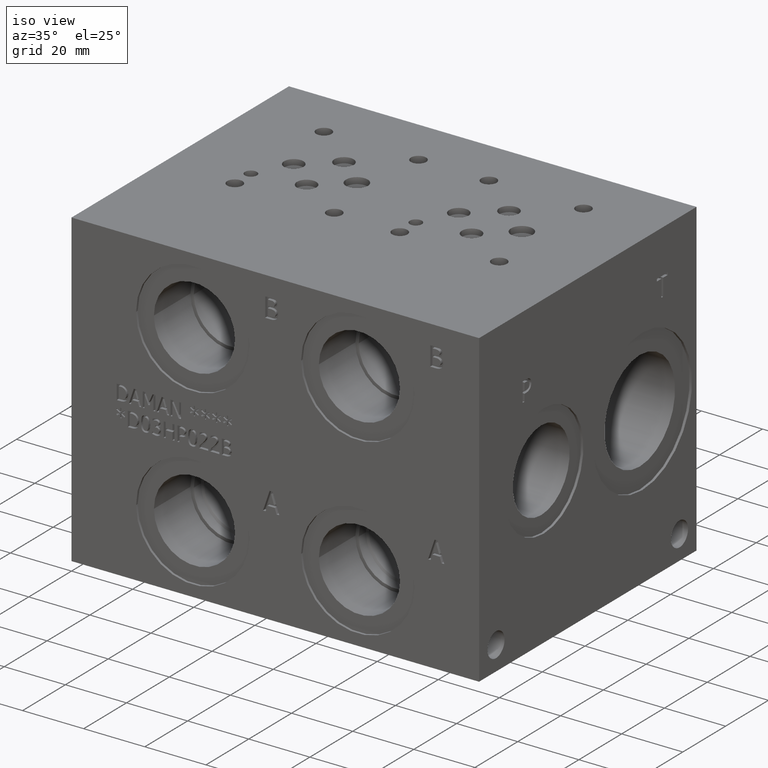
[diagram: clean part render]
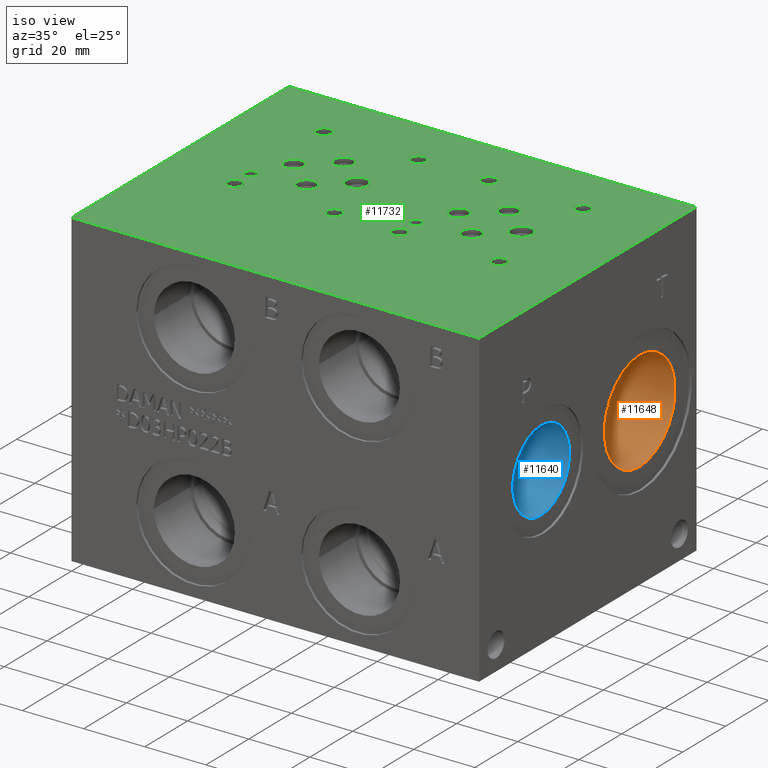
[diagram: same view with three faces highlighted in distinct colors, each labeled with its STEP entity id]
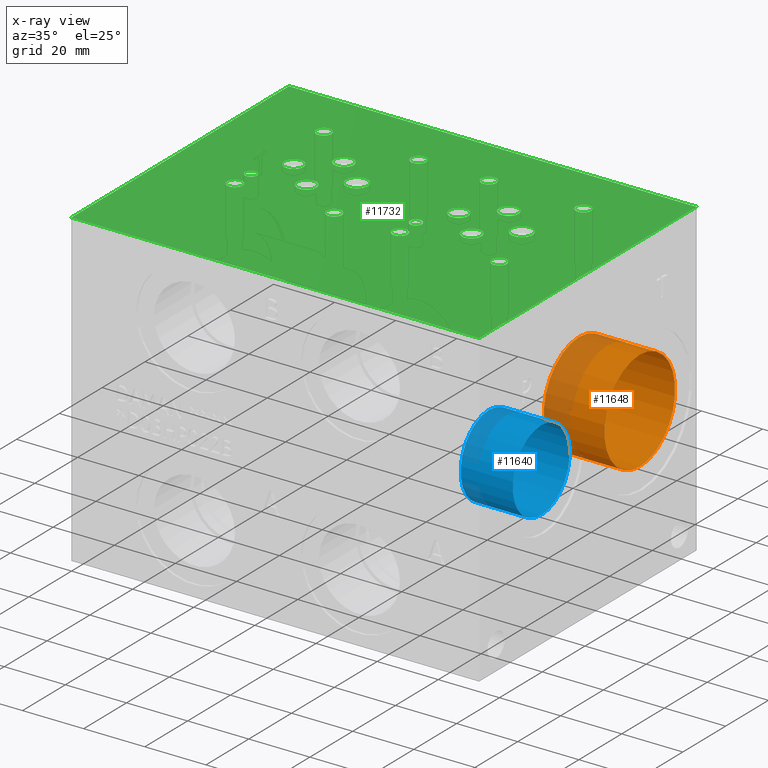
[diagram: x-ray of the same camera — body ghosted, the three highlighted faces saturated]
A machine part, iso view with three faces highlighted in distinct colors.
The next image is the same camera in x-ray (body ghosted, the three faces saturated) — at least one of them is partly hidden behind the body in this view.
Their STEP definitions:

[orange] entity #11648 — the highlighted cylindrical surface (bore or boss wall) has radius 16.4973 mm, axis along (-1, 0, 0).
#78=CYLINDRICAL_SURFACE('',#12227,16.4973);
#375=CIRCLE('',#12225,16.4973);
#376=CIRCLE('',#12226,16.4973);
#377=CIRCLE('',#12228,16.4973);
#378=CIRCLE('',#12229,16.4973);
#1423=FACE_OUTER_BOUND('',#2092,.T.);
#2092=EDGE_LOOP('',(#9877,#9878,#9879,#9880,#9881,#9882));
#3220=LINE('',#19738,#4296);
#4296=VECTOR('',#14420,16.4973);
#5327=VERTEX_POINT('',#19732);
#5328=VERTEX_POINT('',#19733);
#5329=VERTEX_POINT('',#19737);
#5330=VERTEX_POINT('',#19739);
#6898=EDGE_CURVE('',#5327,#5328,#375,.T.);
#6899=EDGE_CURVE('',#5328,#5327,#376,.T.);
#6900=EDGE_CURVE('',#5328,#5329,#3220,.T.);
#6901=EDGE_CURVE('',#5329,#5330,#377,.T.);
#6902=EDGE_CURVE('',#5330,#5329,#378,.T.);
#9877=ORIENTED_EDGE('',*,*,#6898,.F.);
#9878=ORIENTED_EDGE('',*,*,#6899,.F.);
#9879=ORIENTED_EDGE('',*,*,#6900,.T.);
#9880=ORIENTED_EDGE('',*,*,#6901,.T.);
#9881=ORIENTED_EDGE('',*,*,#6902,.T.);
#9882=ORIENTED_EDGE('',*,*,#6900,.F.);
#11648=ADVANCED_FACE('',(#1423),#78,.F.);
#12225=AXIS2_PLACEMENT_3D('',#19734,#14414,#14415);
#12226=AXIS2_PLACEMENT_3D('',#19735,#14416,#14417);
#12227=AXIS2_PLACEMENT_3D('',#19736,#14418,#14419);
#12228=AXIS2_PLACEMENT_3D('',#19740,#14421,#14422);
#12229=AXIS2_PLACEMENT_3D('',#19741,#14423,#14424);
#14414=DIRECTION('center_axis',(-1.,0.,0.));
#14415=DIRECTION('ref_axis',(0.,0.,1.));
#14416=DIRECTION('center_axis',(-1.,0.,0.));
#14417=DIRECTION('ref_axis',(0.,0.,1.));
#14418=DIRECTION('center_axis',(-1.,0.,0.));
#14419=DIRECTION('ref_axis',(0.,0.,-1.));
#14420=DIRECTION('',(-1.,0.,0.));
#14421=DIRECTION('center_axis',(-1.,0.,0.));
#14422=DIRECTION('ref_axis',(0.,0.,1.));
#14423=DIRECTION('center_axis',(-1.,0.,0.));
#14424=DIRECTION('ref_axis',(0.,0.,1.));
#19732=CARTESIAN_POINT('',(132.5626,76.2,34.3027));
#19733=CARTESIAN_POINT('',(132.5626,76.2,67.2973));
#19734=CARTESIAN_POINT('Origin',(132.5626,76.2,50.8));
#19735=CARTESIAN_POINT('Origin',(132.5626,76.2,50.8));
#19736=CARTESIAN_POINT('Origin',(122.6185,76.2,50.8));
#19737=CARTESIAN_POINT('',(112.6744,76.2,67.2973));
#19738=CARTESIAN_POINT('',(122.6185,76.2,67.2973));
#19739=CARTESIAN_POINT('',(112.6744,76.2,34.3027));
#19740=CARTESIAN_POINT('Origin',(112.6744,76.2,50.8));
#19741=CARTESIAN_POINT('Origin',(112.6744,76.2,50.8));

[blue] entity #11640 — the highlighted cylindrical surface (bore or boss wall) has radius 13.2715 mm, axis along (-1, 0, 0).
#74=CYLINDRICAL_SURFACE('',#12205,13.2715);
#361=CIRCLE('',#12203,13.2715);
#362=CIRCLE('',#12204,13.2715);
#363=CIRCLE('',#12206,13.2715);
#364=CIRCLE('',#12207,13.2715);
#1415=FACE_OUTER_BOUND('',#2082,.T.);
#2082=EDGE_LOOP('',(#9835,#9836,#9837,#9838,#9839,#9840));
#3214=LINE('',#19695,#4290);
#4290=VECTOR('',#14370,13.2715);
#5312=VERTEX_POINT('',#19689);
#5313=VERTEX_POINT('',#19690);
#5314=VERTEX_POINT('',#19694);
#5315=VERTEX_POINT('',#19696);
#6878=EDGE_CURVE('',#5312,#5313,#361,.T.);
#6879=EDGE_CURVE('',#5313,#5312,#362,.T.);
#6880=EDGE_CURVE('',#5313,#5314,#3214,.T.);
#6881=EDGE_CURVE('',#5314,#5315,#363,.T.);
#6882=EDGE_CURVE('',#5315,#5314,#364,.T.);
#9835=ORIENTED_EDGE('',*,*,#6878,.F.);
#9836=ORIENTED_EDGE('',*,*,#6879,.F.);
#9837=ORIENTED_EDGE('',*,*,#6880,.T.);
#9838=ORIENTED_EDGE('',*,*,#6881,.T.);
#9839=ORIENTED_EDGE('',*,*,#6882,.T.);
#9840=ORIENTED_EDGE('',*,*,#6880,.F.);
#11640=ADVANCED_FACE('',(#1415),#74,.F.);
#12203=AXIS2_PLACEMENT_3D('',#19691,#14364,#14365);
#12204=AXIS2_PLACEMENT_3D('',#19692,#14366,#14367);
#12205=AXIS2_PLACEMENT_3D('',#19693,#14368,#14369);
#12206=AXIS2_PLACEMENT_3D('',#19697,#14371,#14372);
#12207=AXIS2_PLACEMENT_3D('',#19698,#14373,#14374);
#14364=DIRECTION('center_axis',(-1.,0.,0.));
#14365=DIRECTION('ref_axis',(0.,0.,1.));
#14366=DIRECTION('center_axis',(-1.,0.,0.));
#14367=DIRECTION('ref_axis',(0.,0.,1.));
#14368=DIRECTION('center_axis',(-1.,0.,0.));
#14369=DIRECTION('ref_axis',(0.,0.,-1.));
#14370=DIRECTION('',(-1.,0.,0.));
#14371=DIRECTION('center_axis',(-1.,0.,0.));
#14372=DIRECTION('ref_axis',(0.,0.,1.));
#14373=DIRECTION('center_axis',(-1.,0.,0.));
#14374=DIRECTION('ref_axis',(0.,0.,1.));
#19689=CARTESIAN_POINT('',(132.5626,30.1752,37.5285));
#19690=CARTESIAN_POINT('',(132.5626,30.1752,64.0715));
#19691=CARTESIAN_POINT('Origin',(132.5626,30.1752,50.8));
#19692=CARTESIAN_POINT('Origin',(132.5626,30.1752,50.8));
#19693=CARTESIAN_POINT('Origin',(124.0155,30.1752,50.8));
#19694=CARTESIAN_POINT('',(115.4684,30.1752,64.0715));
#19695=CARTESIAN_POINT('',(124.0155,30.1752,64.0715));
#19696=CARTESIAN_POINT('',(115.4684,30.1752,37.5285));
#19697=CARTESIAN_POINT('Origin',(115.4684,30.1752,50.8));
#19698=CARTESIAN_POINT('Origin',(115.4684,30.1752,50.8));

[green] entity #11732 — the highlighted planar face has unit normal (0, 0, 1).
#315=CIRCLE('',#12129,1.9812);
#316=CIRCLE('',#12130,1.9812);
#322=CIRCLE('',#12139,2.5019);
#323=CIRCLE('',#12140,2.5019);
#329=CIRCLE('',#12150,2.5019);
#330=CIRCLE('',#12151,2.5019);
#336=CIRCLE('',#12161,2.5019);
#337=CIRCLE('',#12162,2.5019);
#343=CIRCLE('',#12172,2.5019);
#344=CIRCLE('',#12173,2.5019);
#451=CIRCLE('',#12349,3.5687);
#452=CIRCLE('',#12350,3.5687);
#455=CIRCLE('',#12355,3.5687);
#456=CIRCLE('',#12356,3.5687);
#459=CIRCLE('',#12361,3.175);
#460=CIRCLE('',#12362,3.175);
#463=CIRCLE('',#12367,3.175);
#464=CIRCLE('',#12368,3.175);
#467=CIRCLE('',#12373,3.175);
#468=CIRCLE('',#12374,3.175);
#471=CIRCLE('',#12379,3.175);
#472=CIRCLE('',#12380,3.175);
#475=CIRCLE('',#12385,3.175);
#476=CIRCLE('',#12386,3.175);
#479=CIRCLE('',#12391,3.175);
#480=CIRCLE('',#12392,3.175);
#483=CIRCLE('',#12397,1.9812);
#484=CIRCLE('',#12398,1.9812);
#490=CIRCLE('',#12407,2.5019);
#491=CIRCLE('',#12408,2.5019);
#497=CIRCLE('',#12418,2.5019);
#498=CIRCLE('',#12419,2.5019);
#504=CIRCLE('',#12429,2.5019);
#505=CIRCLE('',#12430,2.5019);
#511=CIRCLE('',#12440,2.5019);
#512=CIRCLE('',#12441,2.5019);
#891=FACE_BOUND('',#2192,.T.);
#892=FACE_BOUND('',#2193,.T.);
#893=FACE_BOUND('',#2194,.T.);
#894=FACE_BOUND('',#2195,.T.);
#895=FACE_BOUND('',#2196,.T.);
#896=FACE_BOUND('',#2197,.T.);
#897=FACE_BOUND('',#2198,.T.);
#898=FACE_BOUND('',#2199,.T.);
#899=FACE_BOUND('',#2200,.T.);
#900=FACE_BOUND('',#2201,.T.);
#901=FACE_BOUND('',#2202,.T.);
#902=FACE_BOUND('',#2203,.T.);
#903=FACE_BOUND('',#2204,.T.);
#904=FACE_BOUND('',#2205,.T.);
#905=FACE_BOUND('',#2206,.T.);
#906=FACE_BOUND('',#2207,.T.);
#907=FACE_BOUND('',#2208,.T.);
#908=FACE_BOUND('',#2209,.T.);
#1507=FACE_OUTER_BOUND('',#2191,.T.);
#2191=EDGE_LOOP('',(#10295,#10296,#10297,#10298));
#2192=EDGE_LOOP('',(#10299,#10300));
#2193=EDGE_LOOP('',(#10301,#10302));
#2194=EDGE_LOOP('',(#10303,#10304));
#2195=EDGE_LOOP('',(#10305,#10306));
#2196=EDGE_LOOP('',(#10307,#10308));
#2197=EDGE_LOOP('',(#10309,#10310));
#2198=EDGE_LOOP('',(#10311,#10312));
#2199=EDGE_LOOP('',(#10313,#10314));
#2200=EDGE_LOOP('',(#10315,#10316));
#2201=EDGE_LOOP('',(#10317,#10318));
#2202=EDGE_LOOP('',(#10319,#10320));
#2203=EDGE_LOOP('',(#10321,#10322));
#2204=EDGE_LOOP('',(#10323,#10324));
#2205=EDGE_LOOP('',(#10325,#10326));
#2206=EDGE_LOOP('',(#10327,#10328));
#2207=EDGE_LOOP('',(#10329,#10330));
#2208=EDGE_LOOP('',(#10331,#10332));
#2209=EDGE_LOOP('',(#10333,#10334));
#2246=LINE('',#15004,#3322);
#3032=LINE('',#18778,#4108);
#3090=LINE('',#19049,#4166);
#3286=LINE('',#20176,#4362);
#3322=VECTOR('',#12512,10.);
#4108=VECTOR('',#13810,10.);
#4166=VECTOR('',#13922,10.);
#4362=VECTOR('',#14920,10.);
#4387=VERTEX_POINT('',#15001);
#4388=VERTEX_POINT('',#15003);
#5096=VERTEX_POINT('',#18776);
#5154=VERTEX_POINT('',#19048);
#5259=VERTEX_POINT('',#19540);
#5260=VERTEX_POINT('',#19541);
#5267=VERTEX_POINT('',#19560);
#5268=VERTEX_POINT('',#19561);
#5275=VERTEX_POINT('',#19582);
#5276=VERTEX_POINT('',#19583);
#5283=VERTEX_POINT('',#19604);
#5284=VERTEX_POINT('',#19605);
#5291=VERTEX_POINT('',#19626);
#5292=VERTEX_POINT('',#19627);
#5411=VERTEX_POINT('',#19976);
#5412=VERTEX_POINT('',#19977);
#5416=VERTEX_POINT('',#19989);
#5417=VERTEX_POINT('',#19990);
#5421=VERTEX_POINT('',#20002);
#5422=VERTEX_POINT('',#20003);
#5426=VERTEX_POINT('',#20015);
#5427=VERTEX_POINT('',#20016);
#5431=VERTEX_POINT('',#20028);
#5432=VERTEX_POINT('',#20029);
#5436=VERTEX_POINT('',#20041);
#5437=VERTEX_POINT('',#20042);
#5441=VERTEX_POINT('',#20054);
#5442=VERTEX_POINT('',#20055);
#5446=VERTEX_POINT('',#20067);
#5447=VERTEX_POINT('',#20068);
#5451=VERTEX_POINT('',#20080);
#5452=VERTEX_POINT('',#20081);
#5459=VERTEX_POINT('',#20100);
#5460=VERTEX_POINT('',#20101);
#5467=VERTEX_POINT('',#20122);
#5468=VERTEX_POINT('',#20123);
#5475=VERTEX_POINT('',#20144);
#5476=VERTEX_POINT('',#20145);
#5483=VERTEX_POINT('',#20166);
#5484=VERTEX_POINT('',#20167);
#5520=EDGE_CURVE('',#4388,#4387,#2246,.T.);
#6570=EDGE_CURVE('',#4387,#5096,#3032,.T.);
#6652=EDGE_CURVE('',#5154,#4388,#3090,.T.);
#6810=EDGE_CURVE('',#5259,#5260,#315,.T.);
#6811=EDGE_CURVE('',#5260,#5259,#316,.T.);
#6819=EDGE_CURVE('',#5267,#5268,#322,.T.);
#6820=EDGE_CURVE('',#5268,#5267,#323,.T.);
#6829=EDGE_CURVE('',#5275,#5276,#329,.T.);
#6830=EDGE_CURVE('',#5276,#5275,#330,.T.);
#6839=EDGE_CURVE('',#5283,#5284,#336,.T.);
#6840=EDGE_CURVE('',#5284,#5283,#337,.T.);
#6849=EDGE_CURVE('',#5291,#5292,#343,.T.);
#6850=EDGE_CURVE('',#5292,#5291,#344,.T.);
#7010=EDGE_CURVE('',#5411,#5412,#451,.T.);
#7011=EDGE_CURVE('',#5412,#5411,#452,.T.);
#7016=EDGE_CURVE('',#5416,#5417,#455,.T.);
#7017=EDGE_CURVE('',#5417,#5416,#456,.T.);
#7022=EDGE_CURVE('',#5421,#5422,#459,.T.);
#7023=EDGE_CURVE('',#5422,#5421,#460,.T.);
#7028=EDGE_CURVE('',#5426,#5427,#463,.T.);
#7029=EDGE_CURVE('',#5427,#5426,#464,.T.);
#7034=EDGE_CURVE('',#5431,#5432,#467,.T.);
#7035=EDGE_CURVE('',#5432,#5431,#468,.T.);
#7040=EDGE_CURVE('',#5436,#5437,#471,.T.);
#7041=EDGE_CURVE('',#5437,#5436,#472,.T.);
#7046=EDGE_CURVE('',#5441,#5442,#475,.T.);
#7047=EDGE_CURVE('',#5442,#5441,#476,.T.);
#7052=EDGE_CURVE('',#5446,#5447,#479,.T.);
#7053=EDGE_CURVE('',#5447,#5446,#480,.T.);
#7058=EDGE_CURVE('',#5451,#5452,#483,.T.);
#7059=EDGE_CURVE('',#5452,#5451,#484,.T.);
#7067=EDGE_CURVE('',#5459,#5460,#490,.T.);
#7068=EDGE_CURVE('',#5460,#5459,#491,.T.);
#7077=EDGE_CURVE('',#5467,#5468,#497,.T.);
#7078=EDGE_CURVE('',#5468,#5467,#498,.T.);
#7087=EDGE_CURVE('',#5475,#5476,#504,.T.);
#7088=EDGE_CURVE('',#5476,#5475,#505,.T.);
#7097=EDGE_CURVE('',#5483,#5484,#511,.T.);
#7098=EDGE_CURVE('',#5484,#5483,#512,.T.);
#7102=EDGE_CURVE('',#5096,#5154,#3286,.T.);
#10295=ORIENTED_EDGE('',*,*,#5520,.T.);
#10296=ORIENTED_EDGE('',*,*,#6570,.T.);
#10297=ORIENTED_EDGE('',*,*,#7102,.T.);
#10298=ORIENTED_EDGE('',*,*,#6652,.T.);
#10299=ORIENTED_EDGE('',*,*,#6810,.T.);
#10300=ORIENTED_EDGE('',*,*,#6811,.T.);
#10301=ORIENTED_EDGE('',*,*,#6819,.T.);
#10302=ORIENTED_EDGE('',*,*,#6820,.T.);
#10303=ORIENTED_EDGE('',*,*,#6829,.T.);
#10304=ORIENTED_EDGE('',*,*,#6830,.T.);
#10305=ORIENTED_EDGE('',*,*,#6839,.T.);
#10306=ORIENTED_EDGE('',*,*,#6840,.T.);
#10307=ORIENTED_EDGE('',*,*,#6849,.T.);
#10308=ORIENTED_EDGE('',*,*,#6850,.T.);
#10309=ORIENTED_EDGE('',*,*,#7010,.T.);
#10310=ORIENTED_EDGE('',*,*,#7011,.T.);
#10311=ORIENTED_EDGE('',*,*,#7016,.T.);
#10312=ORIENTED_EDGE('',*,*,#7017,.T.);
#10313=ORIENTED_EDGE('',*,*,#7022,.T.);
#10314=ORIENTED_EDGE('',*,*,#7023,.T.);
#10315=ORIENTED_EDGE('',*,*,#7028,.T.);
#10316=ORIENTED_EDGE('',*,*,#7029,.T.);
#10317=ORIENTED_EDGE('',*,*,#7034,.T.);
#10318=ORIENTED_EDGE('',*,*,#7035,.T.);
#10319=ORIENTED_EDGE('',*,*,#7040,.T.);
#10320=ORIENTED_EDGE('',*,*,#7041,.T.);
#10321=ORIENTED_EDGE('',*,*,#7046,.T.);
#10322=ORIENTED_EDGE('',*,*,#7047,.T.);
#10323=ORIENTED_EDGE('',*,*,#7052,.T.);
#10324=ORIENTED_EDGE('',*,*,#7053,.T.);
#10325=ORIENTED_EDGE('',*,*,#7058,.T.);
#10326=ORIENTED_EDGE('',*,*,#7059,.T.);
#10327=ORIENTED_EDGE('',*,*,#7067,.T.);
#10328=ORIENTED_EDGE('',*,*,#7068,.T.);
#10329=ORIENTED_EDGE('',*,*,#7077,.T.);
#10330=ORIENTED_EDGE('',*,*,#7078,.T.);
#10331=ORIENTED_EDGE('',*,*,#7087,.T.);
#10332=ORIENTED_EDGE('',*,*,#7088,.T.);
#10333=ORIENTED_EDGE('',*,*,#7097,.T.);
#10334=ORIENTED_EDGE('',*,*,#7098,.T.);
#10686=PLANE('',#12447);
#11732=ADVANCED_FACE('',(#1507,#891,#892,#893,#894,#895,#896,#897,#898,
#899,#900,#901,#902,#903,#904,#905,#906,#907,#908),#10686,.T.);
#12129=AXIS2_PLACEMENT_3D('',#19542,#14194,#14195);
#12130=AXIS2_PLACEMENT_3D('',#19543,#14196,#14197);
#12139=AXIS2_PLACEMENT_3D('',#19562,#14216,#14217);
#12140=AXIS2_PLACEMENT_3D('',#19563,#14218,#14219);
#12150=AXIS2_PLACEMENT_3D('',#19584,#14241,#14242);
#12151=AXIS2_PLACEMENT_3D('',#19585,#14243,#14244);
#12161=AXIS2_PLACEMENT_3D('',#19606,#14266,#14267);
#12162=AXIS2_PLACEMENT_3D('',#19607,#14268,#14269);
#12172=AXIS2_PLACEMENT_3D('',#19628,#14291,#14292);
#12173=AXIS2_PLACEMENT_3D('',#19629,#14293,#14294);
#12349=AXIS2_PLACEMENT_3D('',#19978,#14698,#14699);
#12350=AXIS2_PLACEMENT_3D('',#19979,#14700,#14701);
#12355=AXIS2_PLACEMENT_3D('',#19991,#14712,#14713);
#12356=AXIS2_PLACEMENT_3D('',#19992,#14714,#14715);
#12361=AXIS2_PLACEMENT_3D('',#20004,#14726,#14727);
#12362=AXIS2_PLACEMENT_3D('',#20005,#14728,#14729);
#12367=AXIS2_PLACEMENT_3D('',#20017,#14740,#14741);
#12368=AXIS2_PLACEMENT_3D('',#20018,#14742,#14743);
#12373=AXIS2_PLACEMENT_3D('',#20030,#14754,#14755);
#12374=AXIS2_PLACEMENT_3D('',#20031,#14756,#14757);
#12379=AXIS2_PLACEMENT_3D('',#20043,#14768,#14769);
#12380=AXIS2_PLACEMENT_3D('',#20044,#14770,#14771);
#12385=AXIS2_PLACEMENT_3D('',#20056,#14782,#14783);
#12386=AXIS2_PLACEMENT_3D('',#20057,#14784,#14785);
#12391=AXIS2_PLACEMENT_3D('',#20069,#14796,#14797);
#12392=AXIS2_PLACEMENT_3D('',#20070,#14798,#14799);
#12397=AXIS2_PLACEMENT_3D('',#20082,#14810,#14811);
#12398=AXIS2_PLACEMENT_3D('',#20083,#14812,#14813);
#12407=AXIS2_PLACEMENT_3D('',#20102,#14832,#14833);
#12408=AXIS2_PLACEMENT_3D('',#20103,#14834,#14835);
#12418=AXIS2_PLACEMENT_3D('',#20124,#14857,#14858);
#12419=AXIS2_PLACEMENT_3D('',#20125,#14859,#14860);
#12429=AXIS2_PLACEMENT_3D('',#20146,#14882,#14883);
#12430=AXIS2_PLACEMENT_3D('',#20147,#14884,#14885);
#12440=AXIS2_PLACEMENT_3D('',#20168,#14907,#14908);
#12441=AXIS2_PLACEMENT_3D('',#20169,#14909,#14910);
#12447=AXIS2_PLACEMENT_3D('',#20179,#14925,#14926);
#12512=DIRECTION('',(1.,0.,0.));
#13810=DIRECTION('',(0.,1.,0.));
#13922=DIRECTION('',(0.,-1.,0.));
#14194=DIRECTION('center_axis',(0.,0.,-1.));
#14195=DIRECTION('ref_axis',(1.,0.,0.));
#14196=DIRECTION('center_axis',(0.,0.,-1.));
#14197=DIRECTION('ref_axis',(1.,0.,0.));
#14216=DIRECTION('center_axis',(0.,0.,-1.));
#14217=DIRECTION('ref_axis',(1.,0.,0.));
#14218=DIRECTION('center_axis',(0.,0.,-1.));
#14219=DIRECTION('ref_axis',(1.,0.,0.));
#14241=DIRECTION('center_axis',(0.,0.,-1.));
#14242=DIRECTION('ref_axis',(1.,0.,0.));
#14243=DIRECTION('center_axis',(0.,0.,-1.));
#14244=DIRECTION('ref_axis',(1.,0.,0.));
#14266=DIRECTION('center_axis',(0.,0.,-1.));
#14267=DIRECTION('ref_axis',(1.,0.,0.));
#14268=DIRECTION('center_axis',(0.,0.,-1.));
#14269=DIRECTION('ref_axis',(1.,0.,0.));
#14291=DIRECTION('center_axis',(0.,0.,-1.));
#14292=DIRECTION('ref_axis',(1.,0.,0.));
#14293=DIRECTION('center_axis',(0.,0.,-1.));
#14294=DIRECTION('ref_axis',(1.,0.,0.));
#14698=DIRECTION('center_axis',(0.,0.,-1.));
#14699=DIRECTION('ref_axis',(1.,0.,0.));
#14700=DIRECTION('center_axis',(0.,0.,-1.));
#14701=DIRECTION('ref_axis',(1.,0.,0.));
#14712=DIRECTION('center_axis',(0.,0.,-1.));
#14713=DIRECTION('ref_axis',(1.,0.,0.));
#14714=DIRECTION('center_axis',(0.,0.,-1.));
#14715=DIRECTION('ref_axis',(1.,0.,0.));
#14726=DIRECTION('center_axis',(0.,0.,-1.));
#14727=DIRECTION('ref_axis',(1.,0.,0.));
#14728=DIRECTION('center_axis',(0.,0.,-1.));
#14729=DIRECTION('ref_axis',(1.,0.,0.));
#14740=DIRECTION('center_axis',(0.,0.,-1.));
#14741=DIRECTION('ref_axis',(1.,0.,0.));
#14742=DIRECTION('center_axis',(0.,0.,-1.));
#14743=DIRECTION('ref_axis',(1.,0.,0.));
#14754=DIRECTION('center_axis',(0.,0.,-1.));
#14755=DIRECTION('ref_axis',(1.,0.,0.));
#14756=DIRECTION('center_axis',(0.,0.,-1.));
#14757=DIRECTION('ref_axis',(1.,0.,0.));
#14768=DIRECTION('center_axis',(0.,0.,-1.));
#14769=DIRECTION('ref_axis',(1.,0.,0.));
#14770=DIRECTION('center_axis',(0.,0.,-1.));
#14771=DIRECTION('ref_axis',(1.,0.,0.));
#14782=DIRECTION('center_axis',(0.,0.,-1.));
#14783=DIRECTION('ref_axis',(1.,0.,0.));
#14784=DIRECTION('center_axis',(0.,0.,-1.));
#14785=DIRECTION('ref_axis',(1.,0.,0.));
#14796=DIRECTION('center_axis',(0.,0.,-1.));
#14797=DIRECTION('ref_axis',(1.,0.,0.));
#14798=DIRECTION('center_axis',(0.,0.,-1.));
#14799=DIRECTION('ref_axis',(1.,0.,0.));
#14810=DIRECTION('center_axis',(0.,0.,-1.));
#14811=DIRECTION('ref_axis',(1.,0.,0.));
#14812=DIRECTION('center_axis',(0.,0.,-1.));
#14813=DIRECTION('ref_axis',(1.,0.,0.));
#14832=DIRECTION('center_axis',(0.,0.,-1.));
#14833=DIRECTION('ref_axis',(1.,0.,0.));
#14834=DIRECTION('center_axis',(0.,0.,-1.));
#14835=DIRECTION('ref_axis',(1.,0.,0.));
#14857=DIRECTION('center_axis',(0.,0.,-1.));
#14858=DIRECTION('ref_axis',(1.,0.,0.));
#14859=DIRECTION('center_axis',(0.,0.,-1.));
#14860=DIRECTION('ref_axis',(1.,0.,0.));
#14882=DIRECTION('center_axis',(0.,0.,-1.));
#14883=DIRECTION('ref_axis',(1.,0.,0.));
#14884=DIRECTION('center_axis',(0.,0.,-1.));
#14885=DIRECTION('ref_axis',(1.,0.,0.));
#14907=DIRECTION('center_axis',(0.,0.,-1.));
#14908=DIRECTION('ref_axis',(1.,0.,0.));
#14909=DIRECTION('center_axis',(0.,0.,-1.));
#14910=DIRECTION('ref_axis',(1.,0.,0.));
#14920=DIRECTION('',(-1.,0.,0.));
#14925=DIRECTION('center_axis',(0.,0.,1.));
#14926=DIRECTION('ref_axis',(1.,0.,0.));
#15001=CARTESIAN_POINT('',(133.35,0.,101.6));
#15003=CARTESIAN_POINT('',(0.,0.,101.6));
#15004=CARTESIAN_POINT('',(0.,0.,101.6));
#18776=CARTESIAN_POINT('',(133.35,101.6,101.6));
#18778=CARTESIAN_POINT('',(133.35,0.,101.6));
#19048=CARTESIAN_POINT('',(0.,101.6,101.6));
#19049=CARTESIAN_POINT('',(0.,101.6,101.6));
#19540=CARTESIAN_POINT('',(79.375,50.3682,101.6));
#19541=CARTESIAN_POINT('',(75.4126,50.3682,101.6));
#19542=CARTESIAN_POINT('Origin',(77.3938,50.3682,101.6));
#19543=CARTESIAN_POINT('Origin',(77.3938,50.3682,101.6));
#19560=CARTESIAN_POINT('',(112.4331,42.8752,101.6));
#19561=CARTESIAN_POINT('',(107.4293,42.8752,101.6));
#19562=CARTESIAN_POINT('Origin',(109.9312,42.8752,101.6));
#19563=CARTESIAN_POINT('Origin',(109.9312,42.8752,101.6));
#19582=CARTESIAN_POINT('',(80.6831,83.3628,101.6));
#19583=CARTESIAN_POINT('',(75.6793,83.3628,101.6));
#19584=CARTESIAN_POINT('Origin',(78.1812,83.3628,101.6));
#19585=CARTESIAN_POINT('Origin',(78.1812,83.3628,101.6));
#19604=CARTESIAN_POINT('',(111.6457,83.3628,101.6));
#19605=CARTESIAN_POINT('',(106.6419,83.3628,101.6));
#19606=CARTESIAN_POINT('Origin',(109.1438,83.3628,101.6));
#19607=CARTESIAN_POINT('Origin',(109.1438,83.3628,101.6));
#19626=CARTESIAN_POINT('',(79.8957,42.8752,101.6));
#19627=CARTESIAN_POINT('',(74.8919,42.8752,101.6));
#19628=CARTESIAN_POINT('Origin',(77.3938,42.8752,101.6));
#19629=CARTESIAN_POINT('Origin',(77.3938,42.8752,101.6));
#19976=CARTESIAN_POINT('',(53.5813,61.9252,101.6));
#19977=CARTESIAN_POINT('',(46.4439,61.9252,101.6));
#19978=CARTESIAN_POINT('Origin',(50.0126,61.9252,101.6));
#19979=CARTESIAN_POINT('Origin',(50.0126,61.9252,101.6));
#19989=CARTESIAN_POINT('',(107.5563,61.9252,101.6));
#19990=CARTESIAN_POINT('',(100.4189,61.9252,101.6));
#19991=CARTESIAN_POINT('Origin',(103.9876,61.9252,101.6));
#19992=CARTESIAN_POINT('Origin',(103.9876,61.9252,101.6));
#20002=CARTESIAN_POINT('',(96.8248,70.6628,101.6));
#20003=CARTESIAN_POINT('',(90.4748,70.6628,101.6));
#20004=CARTESIAN_POINT('Origin',(93.6498,70.6628,101.6));
#20005=CARTESIAN_POINT('Origin',(93.6498,70.6628,101.6));
#20015=CARTESIAN_POINT('',(42.8498,53.1876,101.6));
#20016=CARTESIAN_POINT('',(36.4998,53.1876,101.6));
#20017=CARTESIAN_POINT('Origin',(39.6748,53.1876,101.6));
#20018=CARTESIAN_POINT('Origin',(39.6748,53.1876,101.6));
#20028=CARTESIAN_POINT('',(32.5374,61.9252,101.6));
#20029=CARTESIAN_POINT('',(26.1874,61.9252,101.6));
#20030=CARTESIAN_POINT('Origin',(29.3624,61.9252,101.6));
#20031=CARTESIAN_POINT('Origin',(29.3624,61.9252,101.6));
#20041=CARTESIAN_POINT('',(42.8498,70.6628,101.6));
#20042=CARTESIAN_POINT('',(36.4998,70.6628,101.6));
#20043=CARTESIAN_POINT('Origin',(39.6748,70.6628,101.6));
#20044=CARTESIAN_POINT('Origin',(39.6748,70.6628,101.6));
#20054=CARTESIAN_POINT('',(86.5124,61.9252,101.6));
#20055=CARTESIAN_POINT('',(80.1624,61.9252,101.6));
#20056=CARTESIAN_POINT('Origin',(83.3374,61.9252,101.6));
#20057=CARTESIAN_POINT('Origin',(83.3374,61.9252,101.6));
#20067=CARTESIAN_POINT('',(96.8248,53.1876,101.6));
#20068=CARTESIAN_POINT('',(90.4748,53.1876,101.6));
#20069=CARTESIAN_POINT('Origin',(93.6498,53.1876,101.6));
#20070=CARTESIAN_POINT('Origin',(93.6498,53.1876,101.6));
#20080=CARTESIAN_POINT('',(25.4,50.3682,101.6));
#20081=CARTESIAN_POINT('',(21.4376,50.3682,101.6));
#20082=CARTESIAN_POINT('Origin',(23.4188,50.3682,101.6));
#20083=CARTESIAN_POINT('Origin',(23.4188,50.3682,101.6));
#20100=CARTESIAN_POINT('',(58.4581,42.8752,101.6));
#20101=CARTESIAN_POINT('',(53.4543,42.8752,101.6));
#20102=CARTESIAN_POINT('Origin',(55.9562,42.8752,101.6));
#20103=CARTESIAN_POINT('Origin',(55.9562,42.8752,101.6));
#20122=CARTESIAN_POINT('',(26.7081,83.3628,101.6));
#20123=CARTESIAN_POINT('',(21.7043,83.3628,101.6));
#20124=CARTESIAN_POINT('Origin',(24.2062,83.3628,101.6));
#20125=CARTESIAN_POINT('Origin',(24.2062,83.3628,101.6));
#20144=CARTESIAN_POINT('',(57.6707,83.3628,101.6));
#20145=CARTESIAN_POINT('',(52.6669,83.3628,101.6));
#20146=CARTESIAN_POINT('Origin',(55.1688,83.3628,101.6));
#20147=CARTESIAN_POINT('Origin',(55.1688,83.3628,101.6));
#20166=CARTESIAN_POINT('',(25.9207,42.8752,101.6));
#20167=CARTESIAN_POINT('',(20.9169,42.8752,101.6));
#20168=CARTESIAN_POINT('Origin',(23.4188,42.8752,101.6));
#20169=CARTESIAN_POINT('Origin',(23.4188,42.8752,101.6));
#20176=CARTESIAN_POINT('',(133.35,101.6,101.6));
#20179=CARTESIAN_POINT('Origin',(66.675,50.8,101.6));